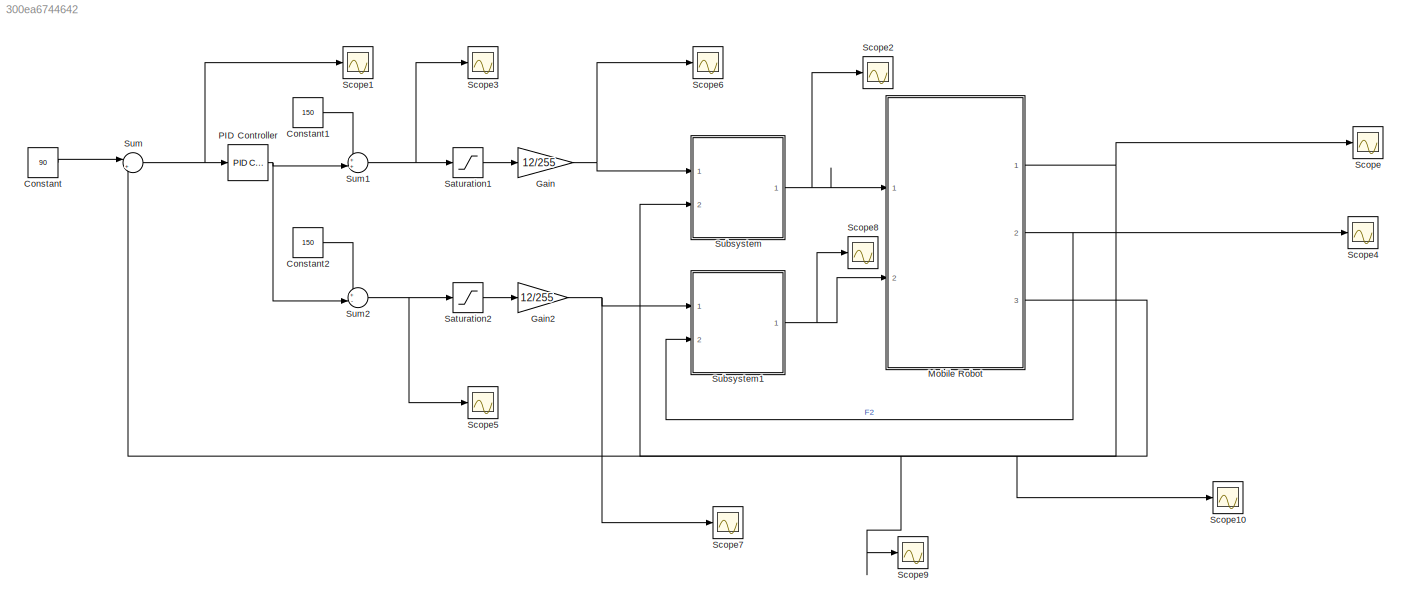
MODEL slx_300ea6744642
KIND model
CONFIG AbsTol = auto
CONFIG EnableMultiTasking = off
CONFIG FixedStep = auto
CONFIG MaxStep = auto
CONFIG MinStep = auto
CONFIG RelTol = 1e-3
CONFIG SampleTimeConstraint = Unconstrained
CONFIG Solver = VariableStepAuto
CONFIG SolverName = VariableStepAuto
CONFIG StartTime = 0.0
CONFIG StopTime = 50
BLOCK [Constant] Constant
  Value = 90
BLOCK [Constant] Constant1
  Value = 150
BLOCK [Constant] Constant2
  Value = 150
BLOCK [Gain] Gain
  Gain = 12/255
  OutDataTypeStr = Inherit: Inherit via internal rule
  ParamDataTypeStr = Inherit: Inherit via internal rule
  SaturateOnIntegerOverflow = off
BLOCK [Gain] Gain2
  Gain = 12/255
  OutDataTypeStr = Inherit: Inherit via internal rule
  ParamDataTypeStr = Inherit: Inherit via internal rule
  SaturateOnIntegerOverflow = off
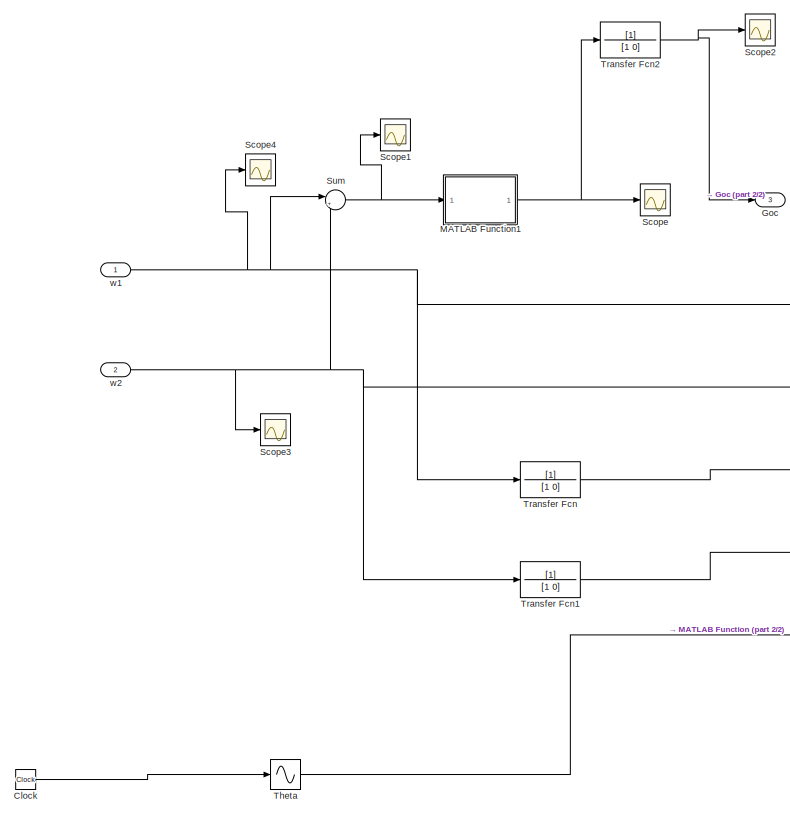
[diagram: Mobile Robot - part 1/2, left side, full height]
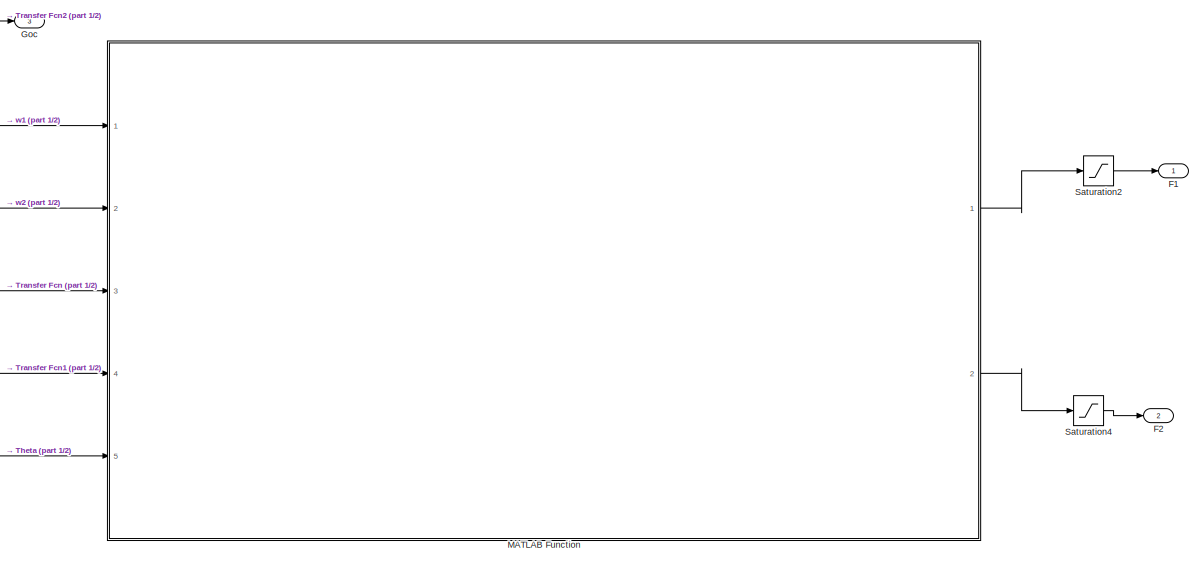
[diagram: Mobile Robot - part 2/2, middle right region]
BLOCK [SubSystem] Mobile Robot
  Ports = [2, 3]
  RequestExecContextInheritance = off
BLOCK [Clock] Mobile Robot/Clock
  Decimation = 5
BLOCK [Outport] Mobile Robot/F1
  IconDisplay = Port number
BLOCK [Outport] Mobile Robot/F2
  IconDisplay = Port number
  Port = 2
BLOCK [Outport] Mobile Robot/Goc 
  IconDisplay = Port number
  Port = 3
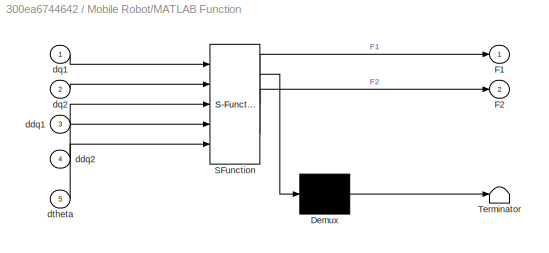
BLOCK [SubSystem] Mobile Robot/MATLAB Function
  ErrorFcn = Stateflow.Translate.translate
  PermitHierarchicalResolution = ExplicitOnly
  Ports = [5, 2]
  RequestExecContextInheritance = off
  SFBlockType = MATLAB Function
  TreatAsAtomicUnit = on
BLOCK [Demux] Mobile Robot/MATLAB Function/ Demux 
  Outputs = 1
  Ports = [1, 1]
BLOCK [S-Function] Mobile Robot/MATLAB Function/ SFunction 
  EnableBusSupport = on
  FunctionName = sf_sfun
  PortCounts = [5 3]
  Ports = [5, 3]
  SFcnIsStateOwnerBlock = off
  SFunctionDeploymentMode = off
  Tag = Stateflow S-Function PID_1 11
BLOCK [Terminator] Mobile Robot/MATLAB Function/ Terminator 
BLOCK [Outport] Mobile Robot/MATLAB Function/F1
  IconDisplay = Port number
BLOCK [Outport] Mobile Robot/MATLAB Function/F2
  IconDisplay = Port number
  Port = 2
BLOCK [Inport] Mobile Robot/MATLAB Function/ddq1
  IconDisplay = Port number
  Port = 3
BLOCK [Inport] Mobile Robot/MATLAB Function/ddq2
  IconDisplay = Port number
  Port = 4
BLOCK [Inport] Mobile Robot/MATLAB Function/dq1
  IconDisplay = Port number
BLOCK [Inport] Mobile Robot/MATLAB Function/dq2
  IconDisplay = Port number
  Port = 2
BLOCK [Inport] Mobile Robot/MATLAB Function/dtheta
  IconDisplay = Port number
  Port = 5
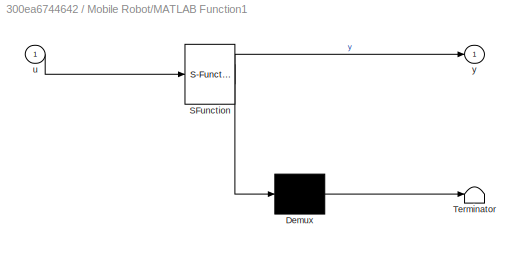
BLOCK [SubSystem] Mobile Robot/MATLAB Function1
  ErrorFcn = Stateflow.Translate.translate
  PermitHierarchicalResolution = ExplicitOnly
  Ports = [1, 1]
  RequestExecContextInheritance = off
  SFBlockType = MATLAB Function
  TreatAsAtomicUnit = on
BLOCK [Demux] Mobile Robot/MATLAB Function1/ Demux 
  Outputs = 1
  Ports = [1, 1]
BLOCK [S-Function] Mobile Robot/MATLAB Function1/ SFunction 
  EnableBusSupport = on
  FunctionName = sf_sfun
  PortCounts = [1 2]
  Ports = [1, 2]
  SFcnIsStateOwnerBlock = off
  SFunctionDeploymentMode = off
  Tag = Stateflow S-Function PID_1 2
BLOCK [Terminator] Mobile Robot/MATLAB Function1/ Terminator 
BLOCK [Inport] Mobile Robot/MATLAB Function1/u
  IconDisplay = Port number
BLOCK [Outport] Mobile Robot/MATLAB Function1/y
  IconDisplay = Port number
BLOCK [Saturate] Mobile Robot/Saturation2
  InputPortMap = u0
  Ports = [1, 1]
BLOCK [Saturate] Mobile Robot/Saturation4
  InputPortMap = u0
  Ports = [1, 1]
BLOCK [Scope] Mobile Robot/Scope
  Floating = off
  NumInputPorts = 1
  Ports = [1]
  ScopeSpecificationString = Simulink.scopes.TimeScopeBlockCfg('CurrentConfiguration', extmgr.ConfigurationSet(extmgr.Configuration('Core','General UI',true),extmgr.Configuration('Core','Source UI',true),extmgr.Configuration('Sources','WiredSimulink',true,'DataLoggingVariableName','ScopeData1'),extmgr.Configuration('Visuals','Time Domain',true,'SerializedDisplays',{struct('MinYLimReal','-633.54112','MaxYLimReal','767.2176','Y...<+1440ch>
BLOCK [Scope] Mobile Robot/Scope1
  Floating = off
  NumInputPorts = 1
  Ports = [1]
  ScopeSpecificationString = Simulink.scopes.TimeScopeBlockCfg('CurrentConfiguration', extmgr.ConfigurationSet(extmgr.Configuration('Core','General UI',true),extmgr.Configuration('Core','Source UI',true),extmgr.Configuration('Sources','WiredSimulink',true,'DataLoggingVariableName','ScopeData2'),extmgr.Configuration('Visuals','Time Domain',true,'SerializedDisplays',{struct('MinYLimReal','-2303.78589','MaxYLimReal','2789.88219'...<+1439ch>
BLOCK [Scope] Mobile Robot/Scope2
  Floating = off
  NumInputPorts = 1
  Ports = [1]
  ScopeSpecificationString = Simulink.scopes.TimeScopeBlockCfg('CurrentConfiguration', extmgr.ConfigurationSet(extmgr.Configuration('Core','General UI',true),extmgr.Configuration('Core','Source UI',true),extmgr.Configuration('Sources','WiredSimulink',true,'DataLoggingVariableName','ScopeData1'),extmgr.Configuration('Visuals','Time Domain',true,'SerializedDisplays',{struct('MinYLimReal','-18.72094','MaxYLimReal','168.48847','Y...<+1437ch>
BLOCK [Scope] Mobile Robot/Scope3
  Floating = off
  NumInputPorts = 1
  Ports = [1]
  ScopeSpecificationString = Simulink.scopes.TimeScopeBlockCfg('CurrentConfiguration', extmgr.ConfigurationSet(extmgr.Configuration('Core','General UI',true),extmgr.Configuration('Core','Source UI',true),extmgr.Configuration('Sources','WiredSimulink',true,'DataLoggingVariableName','ScopeData2'),extmgr.Configuration('Visuals','Time Domain',true,'SerializedDisplays',{struct('MinYLimReal','-1505.21263','MaxYLimReal','2759.62208'...<+1438ch>
BLOCK [Scope] Mobile Robot/Scope4
  Floating = off
  NumInputPorts = 1
  Ports = [1]
  ScopeSpecificationString = Simulink.scopes.TimeScopeBlockCfg('CurrentConfiguration', extmgr.ConfigurationSet(extmgr.Configuration('Core','General UI',true),extmgr.Configuration('Core','Source UI',true),extmgr.Configuration('Sources','WiredSimulink',true,'DataLoggingVariableName','ScopeData3'),extmgr.Configuration('Visuals','Time Domain',true,'SerializedDisplays',{struct('MinYLimReal','-1026.38462','MaxYLimReal','2715.93582'...<+1438ch>
BLOCK [Sum] Mobile Robot/Sum
  IconShape = round
  InputSameDT = off
  Inputs = |+-
  OutDataTypeStr = Inherit: Inherit via internal rule
  Ports = [2, 1]
  SaturateOnIntegerOverflow = off
BLOCK [Sin] Mobile Robot/Theta
  Frequency = 60
  Phase = 30
  Ports = [1, 1]
  SampleTime = 0
  TimeSource = Use external signal
BLOCK [TransferFcn] Mobile Robot/Transfer Fcn
  Denominator = [1 0]
BLOCK [TransferFcn] Mobile Robot/Transfer Fcn1
  Denominator = [1 0]
BLOCK [TransferFcn] Mobile Robot/Transfer Fcn2
  Denominator = [1 0]
BLOCK [Inport] Mobile Robot/w1
  IconDisplay = Port number
BLOCK [Inport] Mobile Robot/w2
  IconDisplay = Port number
  Port = 2
BLOCK [Reference] PID Controller  REF=simulink/Continuous/PID Controller
  Ports = [1, 1]
  SourceBlock = simulink/Continuous/PID Controller
  SourceProductBaseCode = SL
  SourceProductName = Simulink
  SourceType = PID 1dof
BLOCK [Saturate] Saturation1
  InputPortMap = u0
  LowerLimit = 0
  Ports = [1, 1]
  UpperLimit = 230
BLOCK [Saturate] Saturation2
  InputPortMap = u0
  LowerLimit = 0
  Ports = [1, 1]
  UpperLimit = 230
BLOCK [Scope] Scope
  Floating = off
  NumInputPorts = 1
  Ports = [1]
  ScopeSpecificationString = Simulink.scopes.TimeScopeBlockCfg('CurrentConfiguration', extmgr.ConfigurationSet(extmgr.Configuration('Core','General UI',true),extmgr.Configuration('Core','Source UI',true),extmgr.Configuration('Sources','WiredSimulink',true),extmgr.Configuration('Visuals','Time Domain',true,'SerializedDisplays',{struct('MinYLimReal','-0.0625','MaxYLimReal','0.5625','YLabelReal','','MinYLimMag','0.00000','MaxYLi...<+1328ch>
BLOCK [Scope] Scope1
  Floating = off
  NumInputPorts = 1
  Ports = [1]
  ScopeSpecificationString = Simulink.scopes.TimeScopeBlockCfg('CurrentConfiguration', extmgr.ConfigurationSet(extmgr.Configuration('Core','General UI',true),extmgr.Configuration('Core','Source UI',true),extmgr.Configuration('Sources','WiredSimulink',true,'DataLoggingVariableName','ScopeData1'),extmgr.Configuration('Visuals','Time Domain',true,'SerializedDisplays',{struct('MinYLimReal','-107.56155','MaxYLimReal','111.95128','...<+1460ch>
BLOCK [Scope] Scope10
  Floating = off
  NumInputPorts = 1
  Ports = [1]
  ScopeSpecificationString = Simulink.scopes.TimeScopeBlockCfg('CurrentConfiguration', extmgr.ConfigurationSet(extmgr.Configuration('Core','General UI',true),extmgr.Configuration('Core','Source UI',true),extmgr.Configuration('Sources','WiredSimulink',true,'DataLoggingVariableName','ScopeData1'),extmgr.Configuration('Visuals','Time Domain',true,'SerializedDisplays',{struct('MinYLimReal','80.41127','MaxYLimReal','96.02899','YLa...<+1452ch>
BLOCK [Scope] Scope2
  Floating = off
  NumInputPorts = 1
  Ports = [1]
  ScopeSpecificationString = Simulink.scopes.TimeScopeBlockCfg('CurrentConfiguration', extmgr.ConfigurationSet(extmgr.Configuration('Core','General UI',true),extmgr.Configuration('Core','Source UI',true),extmgr.Configuration('Sources','WiredSimulink',true,'DataLoggingVariableName','ScopeData7'),extmgr.Configuration('Visuals','Time Domain',true,'SerializedDisplays',{struct('MinYLimReal','-1013.18759','MaxYLimReal','3053.9533',...<+1487ch>
BLOCK [Scope] Scope3
  Floating = off
  NumInputPorts = 1
  Ports = [1]
  ScopeSpecificationString = Simulink.scopes.TimeScopeBlockCfg('CurrentConfiguration', extmgr.ConfigurationSet(extmgr.Configuration('Core','General UI',true),extmgr.Configuration('Core','Source UI',true),extmgr.Configuration('Sources','WiredSimulink',true,'DataLoggingVariableName','ScopeData3'),extmgr.Configuration('Visuals','Time Domain',true,'SerializedDisplays',{struct('MinYLimReal','-610.91369','MaxYLimReal','1384.54597',...<+1455ch>
BLOCK [Scope] Scope4
  Floating = off
  NumInputPorts = 1
  Ports = [1]
  ScopeSpecificationString = Simulink.scopes.TimeScopeBlockCfg('CurrentConfiguration', extmgr.ConfigurationSet(extmgr.Configuration('Core','General UI',true),extmgr.Configuration('Core','Source UI',true),extmgr.Configuration('Sources','WiredSimulink',true,'DataLoggingVariableName','ScopeData4'),extmgr.Configuration('Visuals','Time Domain',true,'SerializedDisplays',{struct('MinYLimReal','-0.0625','MaxYLimReal','0.5625','YLabel...<+1355ch>
BLOCK [Scope] Scope5
  Floating = off
  NumInputPorts = 1
  Ports = [1]
  ScopeSpecificationString = Simulink.scopes.TimeScopeBlockCfg('CurrentConfiguration', extmgr.ConfigurationSet(extmgr.Configuration('Core','General UI',true),extmgr.Configuration('Core','Source UI',true),extmgr.Configuration('Sources','WiredSimulink',true,'DataLoggingVariableName','ScopeData4'),extmgr.Configuration('Visuals','Time Domain',true,'SerializedDisplays',{struct('MinYLimReal','-1120.31859','MaxYLimReal','1032.86731'...<+1459ch>
BLOCK [Scope] Scope6
  Floating = off
  NumInputPorts = 1
  Ports = [1]
  ScopeSpecificationString = Simulink.scopes.TimeScopeBlockCfg('CurrentConfiguration', extmgr.ConfigurationSet(extmgr.Configuration('Core','General UI',true),extmgr.Configuration('Core','Source UI',true),extmgr.Configuration('Sources','WiredSimulink',true,'DataLoggingVariableName','ScopeData5'),extmgr.Configuration('Visuals','Time Domain',true,'SerializedDisplays',{struct('MinYLimReal','-13','MaxYLimReal','13','YLabelReal',''...<+1446ch>
BLOCK [Scope] Scope7
  Floating = off
  NumInputPorts = 1
  Ports = [1]
  ScopeSpecificationString = Simulink.scopes.TimeScopeBlockCfg('CurrentConfiguration', extmgr.ConfigurationSet(extmgr.Configuration('Core','General UI',true),extmgr.Configuration('Core','Source UI',true),extmgr.Configuration('Sources','WiredSimulink',true,'DataLoggingVariableName','ScopeData6'),extmgr.Configuration('Visuals','Time Domain',true,'SerializedDisplays',{struct('MinYLimReal','-12','MaxYLimReal','12','YLabelReal',''...<+1447ch>
BLOCK [Scope] Scope8
  Floating = off
  NumInputPorts = 1
  Ports = [1]
  ScopeSpecificationString = Simulink.scopes.TimeScopeBlockCfg('CurrentConfiguration', extmgr.ConfigurationSet(extmgr.Configuration('Core','General UI',true),extmgr.Configuration('Core','Source UI',true),extmgr.Configuration('Sources','WiredSimulink',true,'DataLoggingVariableName','ScopeData8'),extmgr.Configuration('Visuals','Time Domain',true,'SerializedDisplays',{struct('MinYLimReal','-1528.25096','MaxYLimReal','3109.01782'...<+1492ch>
BLOCK [Scope] Scope9
  Floating = off
  NumInputPorts = 1
  Ports = [1]
  ScopeSpecificationString = Simulink.scopes.TimeScopeBlockCfg('CurrentConfiguration', extmgr.ConfigurationSet(extmgr.Configuration('Core','General UI',true),extmgr.Configuration('Core','Source UI',true),extmgr.Configuration('Sources','WiredSimulink',true,'DataLoggingVariableName','ScopeData4'),extmgr.Configuration('Visuals','Time Domain',true,'SerializedDisplays',{struct('MinYLimReal','-0.0702','MaxYLimReal','0.51743','YLabe...<+1472ch>
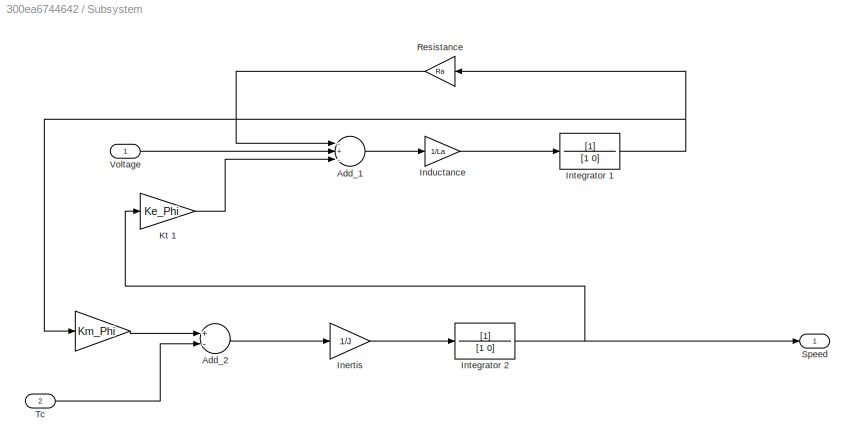
BLOCK [SubSystem] Subsystem
  Ports = [2, 1]
  RequestExecContextInheritance = off
BLOCK [Gain] Subsystem/ 
  Gain = Km_Phi
  OutDataTypeStr = Inherit: Inherit via internal rule
  ParamDataTypeStr = Inherit: Inherit via internal rule
  SaturateOnIntegerOverflow = off
BLOCK [Sum] Subsystem/Add_1 
  InputSameDT = off
  Inputs = -+-
  OutDataTypeStr = Inherit: Inherit via internal rule
  Ports = [3, 1]
  SaturateOnIntegerOverflow = off
BLOCK [Sum] Subsystem/Add_2 
  InputSameDT = off
  Inputs = +-
  OutDataTypeStr = Inherit: Inherit via internal rule
  Ports = [2, 1]
  SaturateOnIntegerOverflow = off
BLOCK [Gain] Subsystem/Inductance 
  Gain = 1/La
  OutDataTypeStr = Inherit: Inherit via internal rule
  ParamDataTypeStr = Inherit: Inherit via internal rule
  SaturateOnIntegerOverflow = off
BLOCK [Gain] Subsystem/Inertis 
  Gain = 1/J
  OutDataTypeStr = Inherit: Inherit via internal rule
  ParamDataTypeStr = Inherit: Inherit via internal rule
  SaturateOnIntegerOverflow = off
BLOCK [TransferFcn] Subsystem/Integrator 1 
  Denominator = [1 0]
BLOCK [TransferFcn] Subsystem/Integrator 2 
  Denominator = [1 0]
BLOCK [Gain] Subsystem/Kt 1
  Gain = Ke_Phi
  OutDataTypeStr = Inherit: Inherit via internal rule
  ParamDataTypeStr = Inherit: Inherit via internal rule
  SaturateOnIntegerOverflow = off
BLOCK [Gain] Subsystem/Resistance
  Gain = Ra
  OutDataTypeStr = Inherit: Inherit via internal rule
  ParamDataTypeStr = Inherit: Inherit via internal rule
  SaturateOnIntegerOverflow = off
BLOCK [Outport] Subsystem/Speed 
  IconDisplay = Port number
BLOCK [Inport] Subsystem/Tc 
  IconDisplay = Port number
  Port = 2
BLOCK [Inport] Subsystem/Voltage 
  IconDisplay = Port number
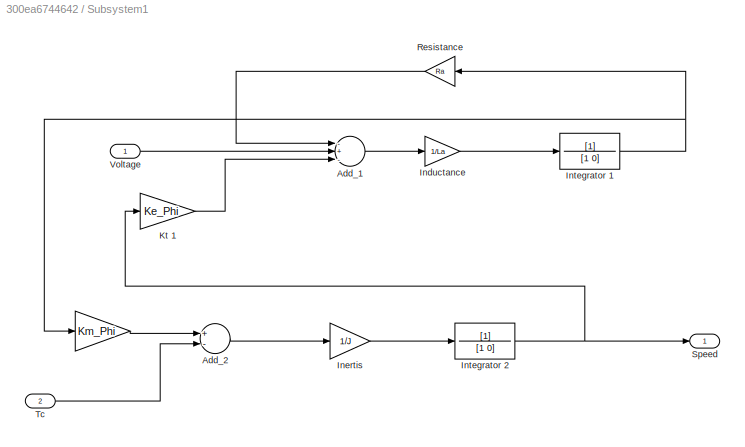
BLOCK [SubSystem] Subsystem1
  Ports = [2, 1]
  RequestExecContextInheritance = off
BLOCK [Gain] Subsystem1/ 
  Gain = Km_Phi
  OutDataTypeStr = Inherit: Inherit via internal rule
  ParamDataTypeStr = Inherit: Inherit via internal rule
  SaturateOnIntegerOverflow = off
BLOCK [Sum] Subsystem1/Add_1 
  InputSameDT = off
  Inputs = -+-
  OutDataTypeStr = Inherit: Inherit via internal rule
  Ports = [3, 1]
  SaturateOnIntegerOverflow = off
BLOCK [Sum] Subsystem1/Add_2 
  InputSameDT = off
  Inputs = +-
  OutDataTypeStr = Inherit: Inherit via internal rule
  Ports = [2, 1]
  SaturateOnIntegerOverflow = off
BLOCK [Gain] Subsystem1/Inductance 
  Gain = 1/La
  OutDataTypeStr = Inherit: Inherit via internal rule
  ParamDataTypeStr = Inherit: Inherit via internal rule
  SaturateOnIntegerOverflow = off
BLOCK [Gain] Subsystem1/Inertis 
  Gain = 1/J
  OutDataTypeStr = Inherit: Inherit via internal rule
  ParamDataTypeStr = Inherit: Inherit via internal rule
  SaturateOnIntegerOverflow = off
BLOCK [TransferFcn] Subsystem1/Integrator 1 
  Denominator = [1 0]
BLOCK [TransferFcn] Subsystem1/Integrator 2 
  Denominator = [1 0]
BLOCK [Gain] Subsystem1/Kt 1
  Gain = Ke_Phi
  OutDataTypeStr = Inherit: Inherit via internal rule
  ParamDataTypeStr = Inherit: Inherit via internal rule
  SaturateOnIntegerOverflow = off
BLOCK [Gain] Subsystem1/Resistance
  Gain = Ra
  OutDataTypeStr = Inherit: Inherit via internal rule
  ParamDataTypeStr = Inherit: Inherit via internal rule
  SaturateOnIntegerOverflow = off
BLOCK [Outport] Subsystem1/Speed 
  IconDisplay = Port number
BLOCK [Inport] Subsystem1/Tc 
  IconDisplay = Port number
  Port = 2
BLOCK [Inport] Subsystem1/Voltage 
  IconDisplay = Port number
BLOCK [Sum] Sum
  IconShape = round
  InputSameDT = off
  Inputs = |+-
  OutDataTypeStr = Inherit: Inherit via internal rule
  Ports = [2, 1]
  SaturateOnIntegerOverflow = off
BLOCK [Sum] Sum1
  IconShape = round
  InputSameDT = off
  Inputs = ++|
  OutDataTypeStr = Inherit: Inherit via internal rule
  Ports = [2, 1]
  SaturateOnIntegerOverflow = off
BLOCK [Sum] Sum2
  IconShape = round
  InputSameDT = off
  Inputs = +-|
  OutDataTypeStr = Inherit: Inherit via internal rule
  Ports = [2, 1]
  SaturateOnIntegerOverflow = off
LINE Constant1:1 -> Sum1:1
LINE Constant2:1 -> Sum2:1
LINE Constant:1 -> Sum:1
NET Gain2:1 -> Scope7:1, Subsystem1:1
NET Gain:1 -> Scope6:1, Subsystem:1
LINE Mobile Robot/Clock:1 -> Mobile Robot/Theta:1
NET Mobile Robot/MATLAB Function1:1 -> Mobile Robot/Scope:1, Mobile Robot/Transfer Fcn2:1
LINE Mobile Robot/MATLAB Function:1 -> Mobile Robot/Saturation2:1
LINE Mobile Robot/MATLAB Function:2 -> Mobile Robot/Saturation4:1
LINE Mobile Robot/Saturation2:1 -> Mobile Robot/F1:1
LINE Mobile Robot/Saturation4:1 -> Mobile Robot/F2:1
NET Mobile Robot/Sum:1 -> Mobile Robot/MATLAB Function1:1, Mobile Robot/Scope1:1
LINE Mobile Robot/Theta:1 -> Mobile Robot/MATLAB Function:5
LINE Mobile Robot/Transfer Fcn1:1 -> Mobile Robot/MATLAB Function:4
NET Mobile Robot/Transfer Fcn2:1 -> Mobile Robot/Goc :1, Mobile Robot/Scope2:1
LINE Mobile Robot/Transfer Fcn:1 -> Mobile Robot/MATLAB Function:3
NET Mobile Robot/w1:1 -> Mobile Robot/MATLAB Function:1, Mobile Robot/Scope4:1, Mobile Robot/Sum:1, Mobile Robot/Transfer Fcn:1
NET Mobile Robot/w2:1 -> Mobile Robot/MATLAB Function:2, Mobile Robot/Scope3:1, Mobile Robot/Sum:2, Mobile Robot/Transfer Fcn1:1
NET Mobile Robot:1 -> Scope9:1, Scope:1, Subsystem:2
NET Mobile Robot:2 -> Scope4:1, Subsystem1:2
NET Mobile Robot:3 -> Scope10:1, Sum:2
NET PID Controller:1 -> Sum1:2, Sum2:2
LINE Saturation1:1 -> Gain:1
LINE Saturation2:1 -> Gain2:1
LINE Subsystem/ :1 -> Subsystem/Add_2 :1
LINE Subsystem/Add_1 :1 -> Subsystem/Inductance :1
LINE Subsystem/Add_2 :1 -> Subsystem/Inertis :1
LINE Subsystem/Inductance :1 -> Subsystem/Integrator 1 :1
LINE Subsystem/Inertis :1 -> Subsystem/Integrator 2 :1
NET Subsystem/Integrator 1 :1 -> Subsystem/ :1, Subsystem/Resistance:1
NET Subsystem/Integrator 2 :1 -> Subsystem/Kt 1:1, Subsystem/Speed :1
LINE Subsystem/Kt 1:1 -> Subsystem/Add_1 :3
LINE Subsystem/Resistance:1 -> Subsystem/Add_1 :1
LINE Subsystem/Tc :1 -> Subsystem/Add_2 :2
LINE Subsystem/Voltage :1 -> Subsystem/Add_1 :2
LINE Subsystem1/ :1 -> Subsystem1/Add_2 :1
LINE Subsystem1/Add_1 :1 -> Subsystem1/Inductance :1
LINE Subsystem1/Add_2 :1 -> Subsystem1/Inertis :1
LINE Subsystem1/Inductance :1 -> Subsystem1/Integrator 1 :1
LINE Subsystem1/Inertis :1 -> Subsystem1/Integrator 2 :1
NET Subsystem1/Integrator 1 :1 -> Subsystem1/ :1, Subsystem1/Resistance:1
NET Subsystem1/Integrator 2 :1 -> Subsystem1/Kt 1:1, Subsystem1/Speed :1
LINE Subsystem1/Kt 1:1 -> Subsystem1/Add_1 :3
LINE Subsystem1/Resistance:1 -> Subsystem1/Add_1 :1
LINE Subsystem1/Tc :1 -> Subsystem1/Add_2 :2
LINE Subsystem1/Voltage :1 -> Subsystem1/Add_1 :2
NET Subsystem1:1 -> Mobile Robot:2, Scope8:1
NET Subsystem:1 -> Mobile Robot:1, Scope2:1
NET Sum1:1 -> Saturation1:1, Scope3:1
NET Sum2:1 -> Saturation2:1, Scope5:1
NET Sum:1 -> PID Controller:1, Scope1:1
note: NET lines group one-source signal fan-out (src -> all destinations, sorted); 1:1 wires keep LINE
CHART Mobile Robot/MATLAB Function1 states=1 transitions=1
  STATE_LABEL 'eML_blk_kernel()'
  STATE_LABEL 'SCRIPT:\nfunction y = fcn(u)\na=u*0.066;\nb=2*0.12;\ny = a/b;\n'
CHART Mobile Robot/MATLAB Function states=1 transitions=1
  STATE_LABEL 'eML_blk_kernel()'
  STATE_LABEL 'SCRIPT:\nfunction [F1,F2]= fcn(dq1,dq2,ddq1,ddq2,dtheta)\nIW=0.00009;\nR=0.001;\nmc=1;\nmw=0.9;\nL=12;\nd=5;\nIc=2;\nIm=0.001;\n\ndq=[dq1;dq2];\nddq=[ddq1;ddq2];\nm=mc+2*mw;\nI=Ic+mc*d^2+2*mw*L^2+2*Im;\n\nM=[IW+(R^2)*(m*L^2+I)/(4*L),(R^2)*(m*L^2-I)/(4*L);\n    (R^2)*(m*L^2-I)/(4*L) ,IW+(R^2)*(m*L^2+I)/(4*L)];\n    \nV=[0, (R^2)*(mc*dtheta)/(2*L);\n  -(R^2)*(mc*dtheta)/(2*L),0];\n\nF=M*ddq+V*dq;\nF1=F(1,1);\nF2=F(2,1);\n  ...<+17ch>'
